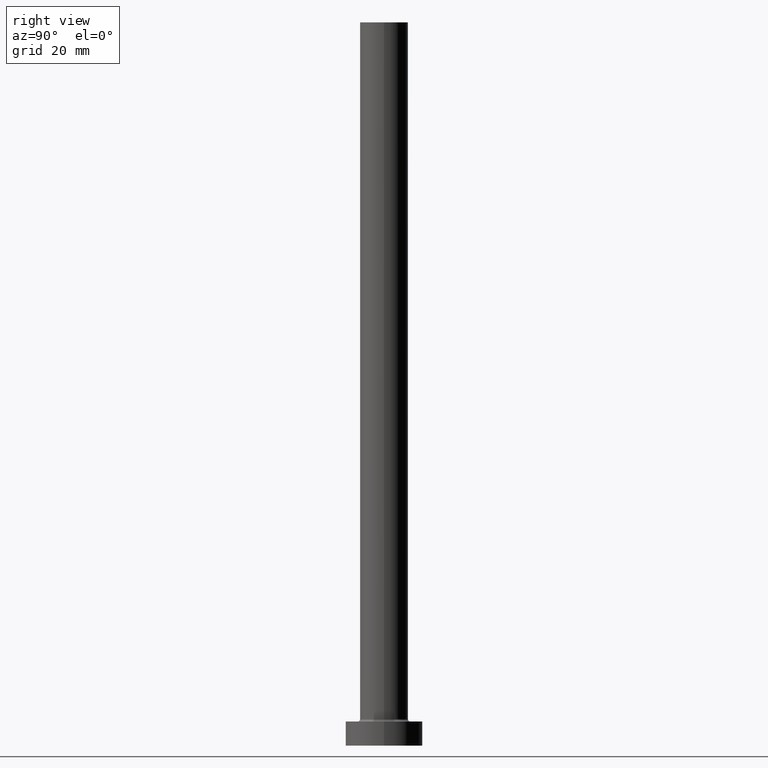
[diagram: clean part render]
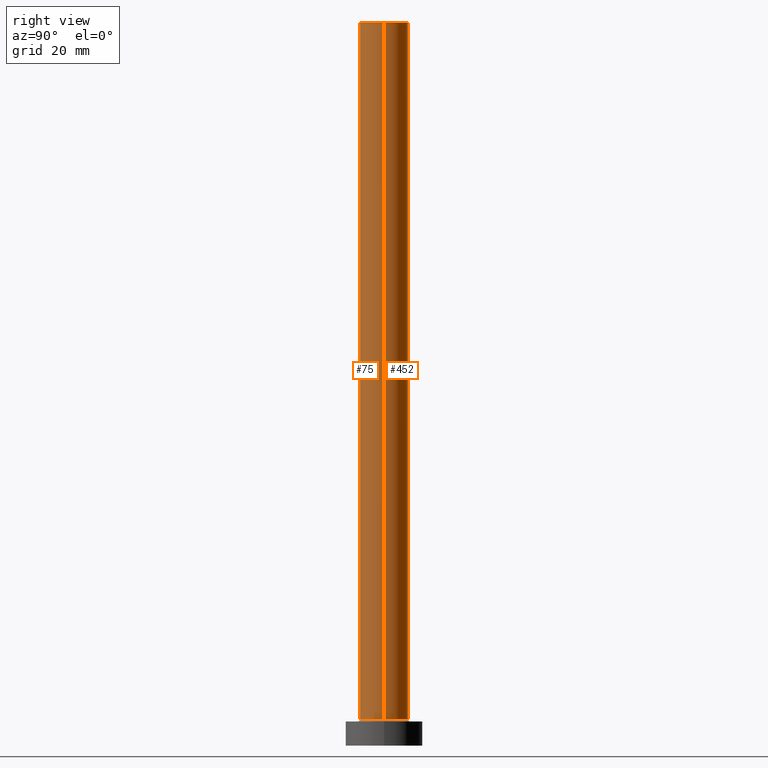
[diagram: same view with one multi-face feature highlighted, each face labeled with its STEP entity id]
A machine part, right view. The highlighted faces form ONE feature: a constant-radius fillet chain: 2 tangent blend faces with common blend radius 5 mm. The faces share edges in the B-rep.
Their STEP definitions:
[1] entity #452 (Cylinder):
#1 = DIRECTION ( 'NONE',  ( 1.000000000000000000, 0.000000000000000000, 0.000000000000000000 ) ) ;
#5 = CARTESIAN_POINT ( 'NONE',  ( 5.000000000000000000, 6.123233995736766282E-16, 150.0000000000000000 ) ) ;
#27 = AXIS2_PLACEMENT_3D ( 'NONE', #334, #203, #74 ) ;
#30 = DIRECTION ( 'NONE',  ( -0.000000000000000000, -0.000000000000000000, -1.000000000000000000 ) ) ;
#34 = LINE ( 'NONE', #214, #442 ) ;
#63 = FACE_OUTER_BOUND ( 'NONE', #97, .T. ) ;
#74 = DIRECTION ( 'NONE',  ( -1.000000000000000000, 0.000000000000000000, 0.000000000000000000 ) ) ;
#82 = CARTESIAN_POINT ( 'NONE',  ( 0.000000000000000000, 0.000000000000000000, 5.500000000000005329 ) ) ;
#97 = EDGE_LOOP ( 'NONE', ( #342, #287, #102, #458 ) ) ;
#102 = ORIENTED_EDGE ( 'NONE', *, *, #128, .T. ) ;
#109 = AXIS2_PLACEMENT_3D ( 'NONE', #82, #385, #313 ) ;
#112 = EDGE_CURVE ( 'NONE', #329, #145, #123, .T. ) ;
#123 = LINE ( 'NONE', #341, #449 ) ;
#128 = EDGE_CURVE ( 'NONE', #145, #222, #173, .T. ) ;
#145 = VERTEX_POINT ( 'NONE', #281 ) ;
#160 = EDGE_CURVE ( 'NONE', #329, #325, #351, .T. ) ;
#173 = CIRCLE ( 'NONE', #109, 5.000000000000000000 ) ;
#187 = CARTESIAN_POINT ( 'NONE',  ( 0.000000000000000000, 0.000000000000000000, 150.0000000000000000 ) ) ;
#188 = CARTESIAN_POINT ( 'NONE',  ( -5.000000000000000000, 0.000000000000000000, 150.0000000000000000 ) ) ;
#203 = DIRECTION ( 'NONE',  ( -0.000000000000000000, -0.000000000000000000, -1.000000000000000000 ) ) ;
#206 = CYLINDRICAL_SURFACE ( 'NONE', #27, 5.000000000000000000 ) ;
#214 = CARTESIAN_POINT ( 'NONE',  ( -5.000000000000000000, 0.000000000000000000, 150.0000000000000000 ) ) ;
#222 = VERTEX_POINT ( 'NONE', #301 ) ;
#281 = CARTESIAN_POINT ( 'NONE',  ( 5.000000000000000000, 6.123233995736766282E-16, 5.500000000000005329 ) ) ;
#287 = ORIENTED_EDGE ( 'NONE', *, *, #112, .T. ) ;
#301 = CARTESIAN_POINT ( 'NONE',  ( -5.000000000000000000, 0.000000000000000000, 5.500000000000005329 ) ) ;
#309 = EDGE_CURVE ( 'NONE', #325, #222, #34, .T. ) ;
#313 = DIRECTION ( 'NONE',  ( 1.000000000000000000, 0.000000000000000000, 0.000000000000000000 ) ) ;
#325 = VERTEX_POINT ( 'NONE', #188 ) ;
#329 = VERTEX_POINT ( 'NONE', #5 ) ;
#334 = CARTESIAN_POINT ( 'NONE',  ( 0.000000000000000000, 0.000000000000000000, 150.0000000000000000 ) ) ;
#341 = CARTESIAN_POINT ( 'NONE',  ( 5.000000000000000000, 6.123233995736766282E-16, 150.0000000000000000 ) ) ;
#342 = ORIENTED_EDGE ( 'NONE', *, *, #160, .F. ) ;
#351 = CIRCLE ( 'NONE', #387, 5.000000000000000000 ) ;
#354 = DIRECTION ( 'NONE',  ( -0.000000000000000000, -0.000000000000000000, -1.000000000000000000 ) ) ;
#385 = DIRECTION ( 'NONE',  ( 0.000000000000000000, 0.000000000000000000, 1.000000000000000000 ) ) ;
#387 = AXIS2_PLACEMENT_3D ( 'NONE', #187, #392, #1 ) ;
#392 = DIRECTION ( 'NONE',  ( 0.000000000000000000, 0.000000000000000000, 1.000000000000000000 ) ) ;
#442 = VECTOR ( 'NONE', #354, 1000.000000000000000 ) ;
#449 = VECTOR ( 'NONE', #30, 1000.000000000000000 ) ;
#452 = ADVANCED_FACE ( 'NONE', ( #63 ), #206, .T. ) ;
#458 = ORIENTED_EDGE ( 'NONE', *, *, #309, .F. ) ;
[2] entity #75 (Cylinder):
#5 = CARTESIAN_POINT ( 'NONE',  ( 5.000000000000000000, 6.123233995736766282E-16, 150.0000000000000000 ) ) ;
#25 = EDGE_LOOP ( 'NONE', ( #133, #76, #277, #391 ) ) ;
#30 = DIRECTION ( 'NONE',  ( -0.000000000000000000, -0.000000000000000000, -1.000000000000000000 ) ) ;
#34 = LINE ( 'NONE', #214, #442 ) ;
#55 = CIRCLE ( 'NONE', #250, 5.000000000000000000 ) ;
#62 = AXIS2_PLACEMENT_3D ( 'NONE', #244, #85, #162 ) ;
#75 = ADVANCED_FACE ( 'NONE', ( #147 ), #388, .T. ) ;
#76 = ORIENTED_EDGE ( 'NONE', *, *, #234, .F. ) ;
#83 = DIRECTION ( 'NONE',  ( -1.000000000000000000, 0.000000000000000000, 0.000000000000000000 ) ) ;
#85 = DIRECTION ( 'NONE',  ( 0.000000000000000000, 0.000000000000000000, 1.000000000000000000 ) ) ;
#112 = EDGE_CURVE ( 'NONE', #329, #145, #123, .T. ) ;
#123 = LINE ( 'NONE', #341, #449 ) ;
#133 = ORIENTED_EDGE ( 'NONE', *, *, #112, .F. ) ;
#145 = VERTEX_POINT ( 'NONE', #281 ) ;
#147 = FACE_OUTER_BOUND ( 'NONE', #25, .T. ) ;
#162 = DIRECTION ( 'NONE',  ( 1.000000000000000000, 0.000000000000000000, 0.000000000000000000 ) ) ;
#170 = DIRECTION ( 'NONE',  ( 0.000000000000000000, 0.000000000000000000, 1.000000000000000000 ) ) ;
#176 = CARTESIAN_POINT ( 'NONE',  ( 0.000000000000000000, 0.000000000000000000, 150.0000000000000000 ) ) ;
#188 = CARTESIAN_POINT ( 'NONE',  ( -5.000000000000000000, 0.000000000000000000, 150.0000000000000000 ) ) ;
#207 = DIRECTION ( 'NONE',  ( 1.000000000000000000, 0.000000000000000000, 0.000000000000000000 ) ) ;
#214 = CARTESIAN_POINT ( 'NONE',  ( -5.000000000000000000, 0.000000000000000000, 150.0000000000000000 ) ) ;
#222 = VERTEX_POINT ( 'NONE', #301 ) ;
#234 = EDGE_CURVE ( 'NONE', #325, #329, #55, .T. ) ;
#239 = CARTESIAN_POINT ( 'NONE',  ( 0.000000000000000000, 0.000000000000000000, 150.0000000000000000 ) ) ;
#244 = CARTESIAN_POINT ( 'NONE',  ( 0.000000000000000000, 0.000000000000000000, 5.500000000000005329 ) ) ;
#250 = AXIS2_PLACEMENT_3D ( 'NONE', #176, #170, #207 ) ;
#277 = ORIENTED_EDGE ( 'NONE', *, *, #309, .T. ) ;
#281 = CARTESIAN_POINT ( 'NONE',  ( 5.000000000000000000, 6.123233995736766282E-16, 5.500000000000005329 ) ) ;
#301 = CARTESIAN_POINT ( 'NONE',  ( -5.000000000000000000, 0.000000000000000000, 5.500000000000005329 ) ) ;
#309 = EDGE_CURVE ( 'NONE', #325, #222, #34, .T. ) ;
#325 = VERTEX_POINT ( 'NONE', #188 ) ;
#329 = VERTEX_POINT ( 'NONE', #5 ) ;
#341 = CARTESIAN_POINT ( 'NONE',  ( 5.000000000000000000, 6.123233995736766282E-16, 150.0000000000000000 ) ) ;
#354 = DIRECTION ( 'NONE',  ( -0.000000000000000000, -0.000000000000000000, -1.000000000000000000 ) ) ;
#371 = CIRCLE ( 'NONE', #62, 5.000000000000000000 ) ;
#381 = AXIS2_PLACEMENT_3D ( 'NONE', #239, #430, #83 ) ;
#388 = CYLINDRICAL_SURFACE ( 'NONE', #381, 5.000000000000000000 ) ;
#391 = ORIENTED_EDGE ( 'NONE', *, *, #405, .T. ) ;
#405 = EDGE_CURVE ( 'NONE', #222, #145, #371, .T. ) ;
#430 = DIRECTION ( 'NONE',  ( -0.000000000000000000, -0.000000000000000000, -1.000000000000000000 ) ) ;
#442 = VECTOR ( 'NONE', #354, 1000.000000000000000 ) ;
#449 = VECTOR ( 'NONE', #30, 1000.000000000000000 ) ;